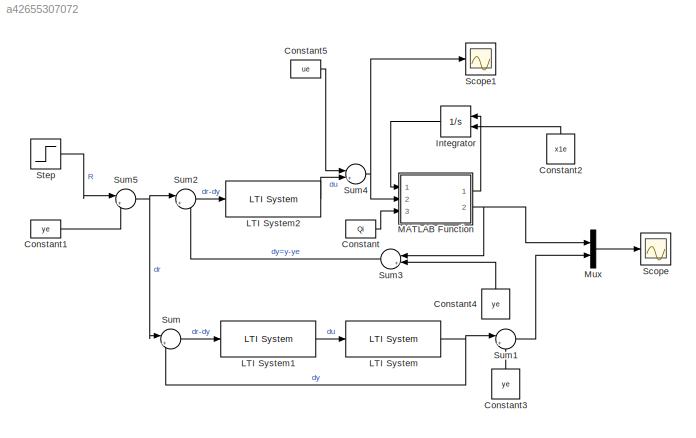
MODEL slx_a42655307072
KIND model
CONFIG AbsTol = auto
CONFIG EnableMultiTasking = off
CONFIG FixedStep = auto
CONFIG MaxStep = auto
CONFIG MinStep = auto
CONFIG RelTol = 1e-3
CONFIG SampleTimeConstraint = Unconstrained
CONFIG SolverName = VariableStepAuto
CONFIG StartTime = 0.0
CONFIG StopTime = 500
BLOCK [Constant] Constant
  Value = Qi
BLOCK [Constant] Constant1
  Value = ye
BLOCK [Constant] Constant2
  NameLocation = right
  Value = x1e
BLOCK [Constant] Constant3
  NameLocation = right
  Value = ye
BLOCK [Constant] Constant4
  NameLocation = right
  Value = ye
BLOCK [Constant] Constant5
  Value = ue
BLOCK [Integrator] Integrator
  InitialConditionSource = external
  NameLocation = top
  Ports = [2, 1]
BLOCK [Reference] LTI System  REF=cstblocks/LTI System
  Ports = [1, 1]
  SourceBlock = cstblocks/LTI System
  SourceProductBaseCode = CT
  SourceType = LTI Block
BLOCK [Reference] LTI System1  REF=cstblocks/LTI System
  Ports = [1, 1]
  SourceBlock = cstblocks/LTI System
  SourceProductBaseCode = CT
  SourceType = LTI Block
BLOCK [Reference] LTI System2  REF=cstblocks/LTI System
  Ports = [1, 1]
  SourceBlock = cstblocks/LTI System
  SourceProductBaseCode = CT
  SourceType = LTI Block
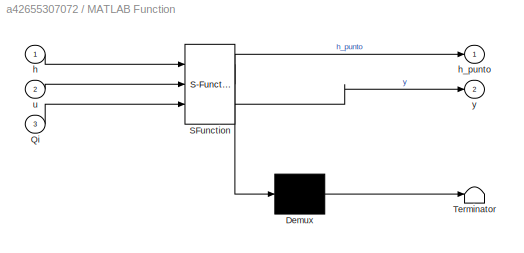
BLOCK [SubSystem] MATLAB Function
  ErrorFcn = Stateflow.Translate.translate
  PermitHierarchicalResolution = ExplicitOnly
  Ports = [3, 2]
  RequestExecContextInheritance = off
  SFBlockType = MATLAB Function
  TreatAsAtomicUnit = on
BLOCK [Demux] MATLAB Function/ Demux 
  Outputs = 1
  Ports = [1, 1]
BLOCK [S-Function] MATLAB Function/ SFunction 
  EnableBusSupport = on
  FunctionName = sf_sfun
  PortCounts = [3 3]
  Ports = [3, 3]
  SFcnIsStateOwnerBlock = off
  SFunctionDeploymentMode = off
  Tag = Stateflow S-Function 2
BLOCK [Terminator] MATLAB Function/ Terminator 
BLOCK [Inport] MATLAB Function/Qi
  Port = 3
BLOCK [Inport] MATLAB Function/h
BLOCK [Outport] MATLAB Function/h_punto
BLOCK [Inport] MATLAB Function/u
  Port = 2
BLOCK [Outport] MATLAB Function/y
  Port = 2
BLOCK [Mux] Mux
  DisplayOption = bar
  Inputs = 2
  Ports = [2, 1]
BLOCK [Scope] Scope
  Floating = off
  NumInputPorts = 1
  Ports = [1]
  ScopeSpecificationString = Simulink.scopes.TimeScopeBlockCfg('CurrentConfiguration', extmgr.ConfigurationSet(extmgr.Configuration('Core','General UI',true),extmgr.Configuration('Core','Source UI',true),extmgr.Configuration('Sources','WiredSimulink',true),extmgr.Configuration('Visuals','Time Domain',true,'SerializedDisplays',{struct('MinYLimReal','-1484009.62128','MaxYLimReal','13356091.09148','YLabelReal','','MinYLimMag',' ...<+1423ch>
BLOCK [Scope] Scope1
  Floating = off
  NumInputPorts = 1
  Ports = [1]
  ScopeSpecificationString = Simulink.scopes.TimeScopeBlockCfg('CurrentConfiguration', extmgr.ConfigurationSet(extmgr.Configuration('Core','General UI',true),extmgr.Configuration('Core','Source UI',true),extmgr.Configuration('Sources','WiredSimulink',true,'DataLoggingVariableName','ScopeData1'),extmgr.Configuration('Visuals','Time Domain',true,'SerializedDisplays',{struct('MinYLimReal','-651293416.86141','MaxYLimReal','723659...<+1452ch>
BLOCK [Step] Step
  After = 0.55
  SampleTime = 0
  Time = 0
BLOCK [Sum] Sum
  Inputs = |+-
  Ports = [2, 1]
BLOCK [Sum] Sum1
  Inputs = |++
  Ports = [2, 1]
BLOCK [Sum] Sum2
  Inputs = |+-
  Ports = [2, 1]
BLOCK [Sum] Sum3
  Inputs = |+-
  NameLocation = top
  Ports = [2, 1]
BLOCK [Sum] Sum4
  Inputs = |++
  Ports = [2, 1]
BLOCK [Sum] Sum5
  Inputs = |+-
  Ports = [2, 1]
LINE Constant1:1 -> Sum5:2
LINE Constant2:1 -> Integrator:2
LINE Constant3:1 -> Sum1:2
LINE Constant4:1 -> Sum3:2
LINE Constant5:1 -> Sum4:1
LINE Constant:1 -> MATLAB Function:3
LINE Integrator:1 -> MATLAB Function:1
LINE LTI System1:1 -> LTI System:1
LINE LTI System2:1 -> Sum4:2
NET LTI System:1 -> Sum1:1, Sum:2
LINE MATLAB Function:1 -> Integrator:1
NET MATLAB Function:2 -> Mux:1, Sum3:1
LINE Mux:1 -> Scope:1
LINE Step:1 -> Sum5:1
LINE Sum1:1 -> Mux:2
LINE Sum2:1 -> LTI System2:1
LINE Sum3:1 -> Sum2:2
NET Sum4:1 -> MATLAB Function:2, Scope1:1
NET Sum5:1 -> Sum2:1, Sum:1
LINE Sum:1 -> LTI System1:1
note: NET lines group one-source signal fan-out (src -> all destinations, sorted); 1:1 wires keep LINE
CHART MATLAB Function states=1 transitions=1
  STATE_LABEL 'eML_blk_kernel()'
  STATE_LABEL 'SCRIPT:\nfunction [h_punto,y] = fcn(h,u,Qi)\n\nd_tuberia= 10.65e-3; % metros\nlb = 10e-2;  % metros\nla= 40e-2; % metros\nS= pi*((d_tuberia/2)^2); % metros^2\nL=0.9; % metros\ng=9.81; % metros/seg^2\n\nh_punto= (Qi - S*u*sqrt(2*g*h))/(lb + (la - lb)*h/L);\ny=h;\nend\n\n'
CHART  states=0 transitions=0
